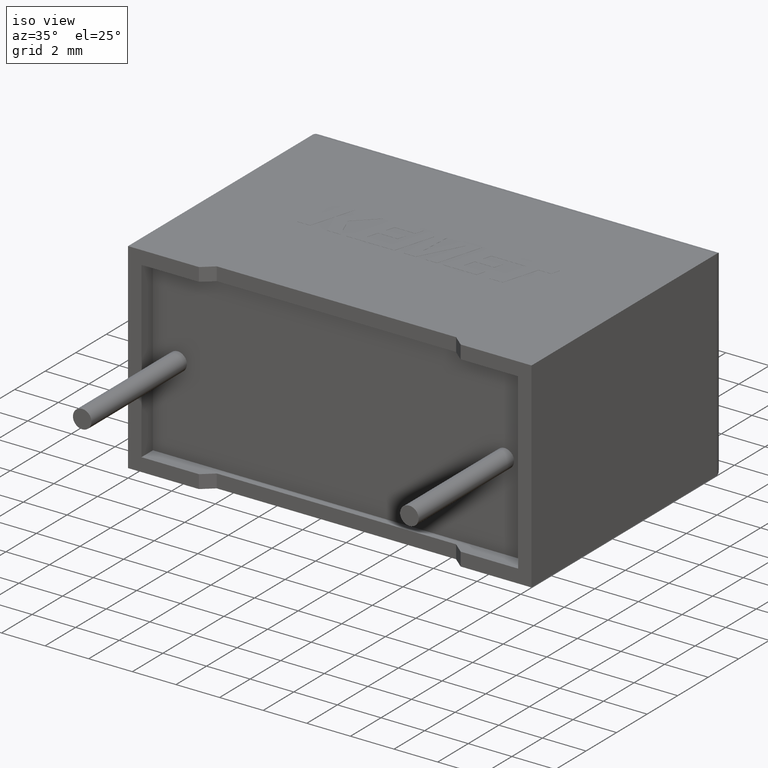
[diagram: clean part render]
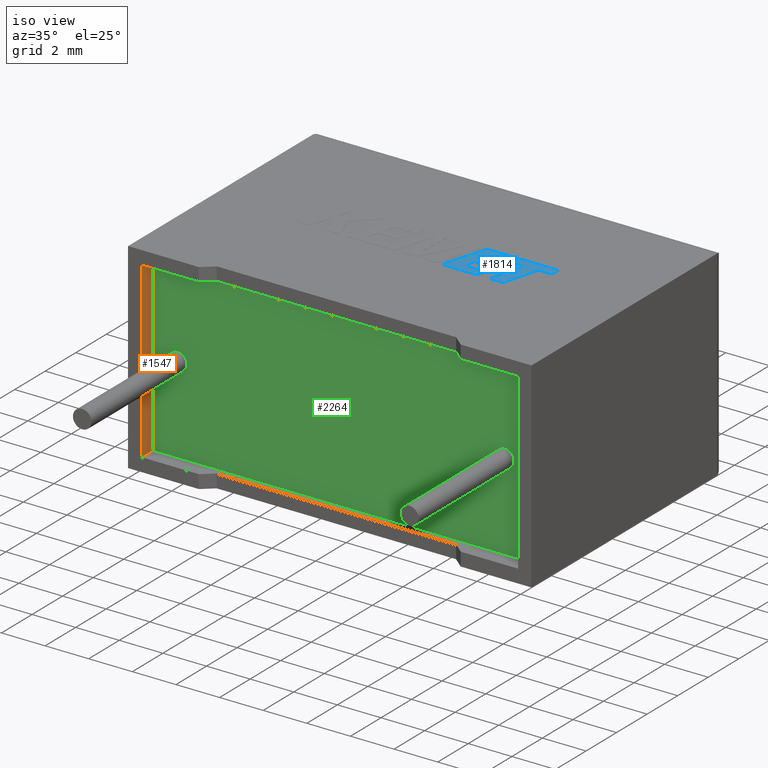
[diagram: same view with three faces highlighted in distinct colors, each labeled with its STEP entity id]
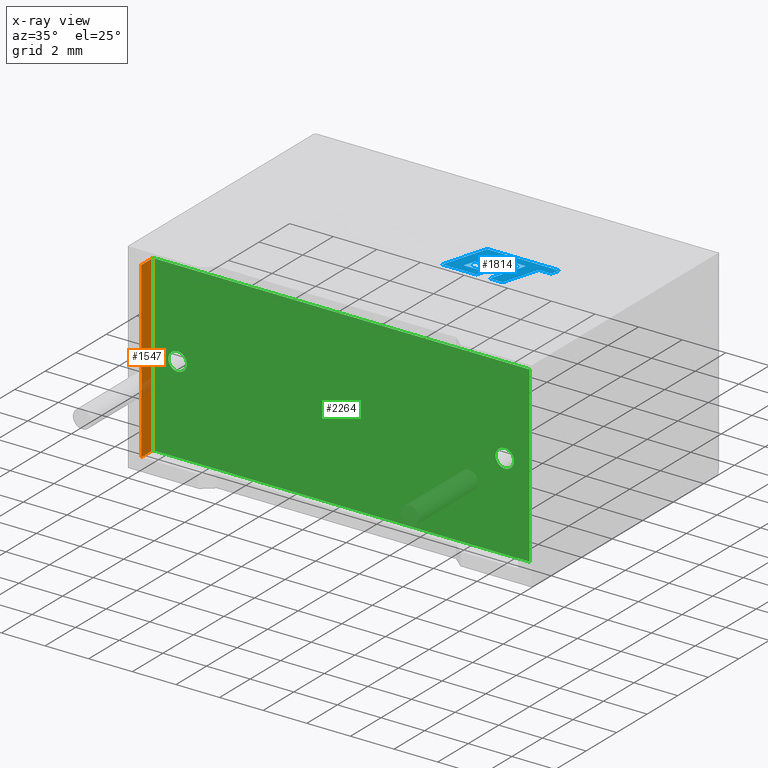
[diagram: x-ray of the same camera — body ghosted, the three highlighted faces saturated]
A machine part, iso view with three faces highlighted in distinct colors.
The next image is the same camera in x-ray (body ghosted, the three faces saturated) — at least one of them is partly hidden behind the body in this view.
Their STEP definitions:

[orange] entity #1547 — the highlighted planar face has unit normal (-1, 0, -0).
#20 = FACE_OUTER_BOUND ( 'NONE', #1400, .T. ) ;
#93 = DIRECTION ( 'NONE',  ( -0.000000000000000000, -1.000000000000000000, -0.000000000000000000 ) ) ;
#151 = VERTEX_POINT ( 'NONE', #849 ) ;
#165 = VECTOR ( 'NONE', #918, 1000.000000000000000 ) ;
#262 = DIRECTION ( 'NONE',  ( -2.721846415985234205E-17, 0.000000000000000000, 1.000000000000000000 ) ) ;
#318 = ORIENTED_EDGE ( 'NONE', *, *, #2822, .T. ) ;
#335 = CARTESIAN_POINT ( 'NONE',  ( 0.6166666050000000343, 0.7500000000000000000, 0.6166666050000000343 ) ) ;
#398 = EDGE_CURVE ( 'NONE', #2894, #1978, #2197, .T. ) ;
#555 = VECTOR ( 'NONE', #2869, 1000.000000000000000 ) ;
#579 = LINE ( 'NONE', #2267, #2067 ) ;
#647 = EDGE_CURVE ( 'NONE', #2625, #2894, #579, .T. ) ;
#849 = CARTESIAN_POINT ( 'NONE',  ( 0.6166666049999998123, 0.000000000000000000, 8.583333394999998589 ) ) ;
#918 = DIRECTION ( 'NONE',  ( -0.000000000000000000, -1.000000000000000000, -0.000000000000000000 ) ) ;
#1188 = ORIENTED_EDGE ( 'NONE', *, *, #3036, .T. ) ;
#1201 = LINE ( 'NONE', #2652, #555 ) ;
#1216 = VECTOR ( 'NONE', #93, 1000.000000000000000 ) ;
#1290 = CARTESIAN_POINT ( 'NONE',  ( 0.6166666050000000343, 0.7500000000000000000, 0.6166666050000000343 ) ) ;
#1400 = EDGE_LOOP ( 'NONE', ( #318, #2171, #1674, #1188 ) ) ;
#1467 = AXIS2_PLACEMENT_3D ( 'NONE', #2599, #2359, #262 ) ;
#1547 = ADVANCED_FACE ( 'NONE', ( #20 ), #2107, .F. ) ;
#1674 = ORIENTED_EDGE ( 'NONE', *, *, #647, .F. ) ;
#1978 = VERTEX_POINT ( 'NONE', #3008 ) ;
#1999 = DIRECTION ( 'NONE',  ( 2.721846415985234513E-17, 0.000000000000000000, -1.000000000000000000 ) ) ;
#2067 = VECTOR ( 'NONE', #1999, 1000.000000000000000 ) ;
#2107 = PLANE ( 'NONE',  #1467 ) ;
#2113 = CARTESIAN_POINT ( 'NONE',  ( 0.6166666049999998123, 0.7500000000000000000, 8.583333394999998589 ) ) ;
#2171 = ORIENTED_EDGE ( 'NONE', *, *, #398, .F. ) ;
#2197 = LINE ( 'NONE', #335, #1216 ) ;
#2267 = CARTESIAN_POINT ( 'NONE',  ( 0.6166666049999998123, 0.7500000000000000000, 8.583333394999998589 ) ) ;
#2359 = DIRECTION ( 'NONE',  ( -1.000000000000000000, 0.000000000000000000, -2.721846415985234205E-17 ) ) ;
#2599 = CARTESIAN_POINT ( 'NONE',  ( 0.6166666049999998123, 0.7500000000000000000, 8.583333394999998589 ) ) ;
#2625 = VERTEX_POINT ( 'NONE', #2793 ) ;
#2652 = CARTESIAN_POINT ( 'NONE',  ( 0.6166666049999998123, 0.000000000000000000, 8.583333394999998589 ) ) ;
#2793 = CARTESIAN_POINT ( 'NONE',  ( 0.6166666049999998123, 0.7500000000000000000, 8.583333394999998589 ) ) ;
#2822 = EDGE_CURVE ( 'NONE', #151, #1978, #1201, .T. ) ;
#2869 = DIRECTION ( 'NONE',  ( 2.721846415985234513E-17, 0.000000000000000000, -1.000000000000000000 ) ) ;
#2894 = VERTEX_POINT ( 'NONE', #1290 ) ;
#3008 = CARTESIAN_POINT ( 'NONE',  ( 0.6166666050000000343, 0.000000000000000000, 0.6166666049999998123 ) ) ;
#3036 = EDGE_CURVE ( 'NONE', #2625, #151, #3054, .T. ) ;
#3054 = LINE ( 'NONE', #2113, #165 ) ;

[blue] entity #1814 — the highlighted planar face has unit normal (0, 0, 1).
#27 = DIRECTION ( 'NONE',  ( -1.000000000000000000, 0.000000000000000000, 0.000000000000000000 ) ) ;
#40 = VERTEX_POINT ( 'NONE', #2036 ) ;
#68 = DIRECTION ( 'NONE',  ( -1.000000000000000000, 0.000000000000000000, 0.000000000000000000 ) ) ;
#83 = CARTESIAN_POINT ( 'NONE',  ( 14.42659749408573688, 7.093795690271837984, 9.205000000000000071 ) ) ;
#89 = EDGE_CURVE ( 'NONE', #988, #1093, #604, .T. ) ;
#111 = DIRECTION ( 'NONE',  ( 1.000000000000000000, 0.000000000000000000, 0.000000000000000000 ) ) ;
#127 = CARTESIAN_POINT ( 'NONE',  ( 14.42659749408573688, 7.093795690271837984, 9.205000000000000071 ) ) ;
#138 = DIRECTION ( 'NONE',  ( 1.000000000000000000, 1.002616505299178603E-15, 0.000000000000000000 ) ) ;
#140 = CARTESIAN_POINT ( 'NONE',  ( 12.35727195110518650, 6.331020239463342136, 9.205000000000000071 ) ) ;
#154 = VERTEX_POINT ( 'NONE', #1610 ) ;
#187 = EDGE_CURVE ( 'NONE', #1475, #40, #2312, .T. ) ;
#200 = CARTESIAN_POINT ( 'NONE',  ( 13.85926046337341688, 7.093840730291446128, 9.205000000000000071 ) ) ;
#208 = VECTOR ( 'NONE', #440, 1000.000000000000114 ) ;
#227 = CARTESIAN_POINT ( 'NONE',  ( 12.46668824934210562, 6.714021387523859019, 9.205000000000000071 ) ) ;
#239 = VECTOR ( 'NONE', #1269, 1000.000000000000114 ) ;
#240 = VERTEX_POINT ( 'NONE', #200 ) ;
#246 = VECTOR ( 'NONE', #2682, 1000.000000000000000 ) ;
#280 = DIRECTION ( 'NONE',  ( 0.2793947940814923148, 0.9601763114346033579, 0.000000000000000000 ) ) ;
#315 = EDGE_CURVE ( 'NONE', #2184, #1897, #2847, .T. ) ;
#330 = CARTESIAN_POINT ( 'NONE',  ( 13.85926046337341688, 7.093840730291446128, 9.205000000000000071 ) ) ;
#356 = CARTESIAN_POINT ( 'NONE',  ( 13.26912064084475595, 7.093840730296598451, 9.205000000000000071 ) ) ;
#368 = EDGE_CURVE ( 'NONE', #1200, #2184, #829, .T. ) ;
#371 = ORIENTED_EDGE ( 'NONE', *, *, #2244, .T. ) ;
#403 = EDGE_CURVE ( 'NONE', #1027, #2395, #2925, .T. ) ;
#410 = LINE ( 'NONE', #1340, #1688 ) ;
#416 = DIRECTION ( 'NONE',  ( -0.2763173343569615414, -0.9610664548999008350, 0.000000000000000000 ) ) ;
#439 = VECTOR ( 'NONE', #68, 1000.000000000000000 ) ;
#440 = DIRECTION ( 'NONE',  ( 0.2746918797667269874, 0.9615323037684286867, 0.000000000000000000 ) ) ;
#452 = ORIENTED_EDGE ( 'NONE', *, *, #2002, .T. ) ;
#468 = DIRECTION ( 'NONE',  ( 0.000000000000000000, 0.000000000000000000, 1.000000000000000000 ) ) ;
#488 = CARTESIAN_POINT ( 'NONE',  ( 13.37866295117204096, 5.421779999999936095, 9.205000000000000071 ) ) ;
#497 = LINE ( 'NONE', #2363, #2032 ) ;
#538 = VECTOR ( 'NONE', #111, 1000.000000000000000 ) ;
#595 = CARTESIAN_POINT ( 'NONE',  ( 11.21512356631426321, 7.493935418444622520, 9.205000000000000071 ) ) ;
#604 = LINE ( 'NONE', #83, #239 ) ;
#650 = VECTOR ( 'NONE', #416, 1000.000000000000000 ) ;
#654 = EDGE_CURVE ( 'NONE', #154, #1437, #1060, .T. ) ;
#668 = CARTESIAN_POINT ( 'NONE',  ( 10.61909897749128184, 5.421779999999935207, 9.205000000000000071 ) ) ;
#669 = EDGE_CURVE ( 'NONE', #2395, #240, #1088, .T. ) ;
#738 = CARTESIAN_POINT ( 'NONE',  ( 12.29655932587097666, 5.816084432582272257, 9.205000000000000071 ) ) ;
#829 = LINE ( 'NONE', #1756, #439 ) ;
#834 = CARTESIAN_POINT ( 'NONE',  ( 11.46814324129412022, 6.331020239463341248, 9.205000000000000071 ) ) ;
#871 = CARTESIAN_POINT ( 'NONE',  ( 11.32113753644195775, 5.816084432582272257, 9.205000000000000071 ) ) ;
#881 = VECTOR ( 'NONE', #2741, 1000.000000000000000 ) ;
#887 = ORIENTED_EDGE ( 'NONE', *, *, #669, .T. ) ;
#903 = CARTESIAN_POINT ( 'NONE',  ( 14.54159073302496274, 7.493935418444622520, 9.205000000000000071 ) ) ;
#932 = LINE ( 'NONE', #2158, #1532 ) ;
#988 = VERTEX_POINT ( 'NONE', #127 ) ;
#1002 = ORIENTED_EDGE ( 'NONE', *, *, #1988, .T. ) ;
#1027 = VERTEX_POINT ( 'NONE', #1541 ) ;
#1030 = EDGE_CURVE ( 'NONE', #40, #1907, #1299, .T. ) ;
#1059 = LINE ( 'NONE', #330, #2538 ) ;
#1060 = LINE ( 'NONE', #595, #881 ) ;
#1069 = ORIENTED_EDGE ( 'NONE', *, *, #2462, .T. ) ;
#1082 = ORIENTED_EDGE ( 'NONE', *, *, #2286, .T. ) ;
#1088 = LINE ( 'NONE', #2008, #246 ) ;
#1093 = VERTEX_POINT ( 'NONE', #903 ) ;
#1154 = EDGE_CURVE ( 'NONE', #1297, #1027, #1816, .T. ) ;
#1155 = DIRECTION ( 'NONE',  ( -1.000000000000000000, 0.000000000000000000, 0.000000000000000000 ) ) ;
#1176 = VECTOR ( 'NONE', #27, 1000.000000000000000 ) ;
#1183 = VERTEX_POINT ( 'NONE', #738 ) ;
#1200 = VERTEX_POINT ( 'NONE', #227 ) ;
#1269 = DIRECTION ( 'NONE',  ( 0.2762033010290175783, 0.9610992334304890861, 0.000000000000000000 ) ) ;
#1297 = VERTEX_POINT ( 'NONE', #356 ) ;
#1299 = LINE ( 'NONE', #834, #2263 ) ;
#1315 = VECTOR ( 'NONE', #2505, 1000.000000000000114 ) ;
#1340 = CARTESIAN_POINT ( 'NONE',  ( 11.68958428804255867, 7.099441967723016056, 9.205000000000000071 ) ) ;
#1357 = CARTESIAN_POINT ( 'NONE',  ( 11.68958428804255867, 7.099441967723016056, 9.205000000000000071 ) ) ;
#1390 = DIRECTION ( 'NONE',  ( 1.000000000000000000, 0.000000000000000000, 0.000000000000000000 ) ) ;
#1396 = CARTESIAN_POINT ( 'NONE',  ( 11.57743352744045318, 6.714021387523859019, 9.205000000000000071 ) ) ;
#1399 = LINE ( 'NONE', #2131, #1176 ) ;
#1437 = VERTEX_POINT ( 'NONE', #2539 ) ;
#1475 = VERTEX_POINT ( 'NONE', #2061 ) ;
#1483 = EDGE_CURVE ( 'NONE', #1437, #2159, #2783, .T. ) ;
#1527 = DIRECTION ( 'NONE',  ( 0.9999999968487351953, -7.938847109813992875E-05, 0.000000000000000000 ) ) ;
#1532 = VECTOR ( 'NONE', #1889, 1000.000000000000227 ) ;
#1541 = CARTESIAN_POINT ( 'NONE',  ( 12.78838451534274867, 5.421779999999936095, 9.205000000000000071 ) ) ;
#1610 = CARTESIAN_POINT ( 'NONE',  ( 11.21512356631426321, 7.493935418444622520, 9.205000000000000071 ) ) ;
#1637 = CARTESIAN_POINT ( 'NONE',  ( -0.2249145928931925442, -1.285113458202319814, 9.204999999999996518 ) ) ;
#1688 = VECTOR ( 'NONE', #2293, 999.9999999999998863 ) ;
#1727 = VECTOR ( 'NONE', #2555, 1000.000000000000000 ) ;
#1756 = CARTESIAN_POINT ( 'NONE',  ( 12.46668824934210562, 6.714021387523859019, 9.205000000000000071 ) ) ;
#1769 = ORIENTED_EDGE ( 'NONE', *, *, #89, .T. ) ;
#1814 = ADVANCED_FACE ( 'NONE', ( #1925 ), #2867, .T. ) ;
#1816 = LINE ( 'NONE', #2766, #650 ) ;
#1888 = VECTOR ( 'NONE', #2938, 1000.000000000000114 ) ;
#1889 = DIRECTION ( 'NONE',  ( 0.9999891854650020395, -0.004650693823678666954, 0.000000000000000000 ) ) ;
#1897 = VERTEX_POINT ( 'NONE', #1357 ) ;
#1907 = VERTEX_POINT ( 'NONE', #140 ) ;
#1910 = ORIENTED_EDGE ( 'NONE', *, *, #1030, .T. ) ;
#1925 = FACE_OUTER_BOUND ( 'NONE', #2179, .T. ) ;
#1929 = ORIENTED_EDGE ( 'NONE', *, *, #1154, .T. ) ;
#1988 = EDGE_CURVE ( 'NONE', #2747, #1297, #932, .T. ) ;
#1997 = ORIENTED_EDGE ( 'NONE', *, *, #187, .T. ) ;
#2002 = EDGE_CURVE ( 'NONE', #1183, #1475, #497, .T. ) ;
#2008 = CARTESIAN_POINT ( 'NONE',  ( 13.37866295117204096, 5.421779999999936095, 9.205000000000000071 ) ) ;
#2023 = ORIENTED_EDGE ( 'NONE', *, *, #2057, .T. ) ;
#2032 = VECTOR ( 'NONE', #1155, 1000.000000000000000 ) ;
#2036 = CARTESIAN_POINT ( 'NONE',  ( 11.46814324129412022, 6.331020239463341248, 9.205000000000000071 ) ) ;
#2057 = EDGE_CURVE ( 'NONE', #1093, #154, #1399, .T. ) ;
#2061 = CARTESIAN_POINT ( 'NONE',  ( 11.32113753644195775, 5.816084432582272257, 9.205000000000000071 ) ) ;
#2077 = CARTESIAN_POINT ( 'NONE',  ( 11.57743352744045318, 6.714021387523859019, 9.205000000000000071 ) ) ;
#2101 = ORIENTED_EDGE ( 'NONE', *, *, #403, .T. ) ;
#2131 = CARTESIAN_POINT ( 'NONE',  ( 14.54159073302496274, 7.493935418444622520, 9.205000000000000071 ) ) ;
#2157 = ORIENTED_EDGE ( 'NONE', *, *, #1483, .T. ) ;
#2158 = CARTESIAN_POINT ( 'NONE',  ( 12.63916099769774704, 7.096770511402368697, 9.205000000000000071 ) ) ;
#2159 = VERTEX_POINT ( 'NONE', #2896 ) ;
#2165 = ORIENTED_EDGE ( 'NONE', *, *, #654, .T. ) ;
#2179 = EDGE_LOOP ( 'NONE', ( #1082, #1002, #1929, #2101, #887, #2452, #1769, #2023, #2165, #2157, #1069, #452, #1997, #1910, #371, #2910, #2239 ) ) ;
#2184 = VERTEX_POINT ( 'NONE', #2077 ) ;
#2209 = LINE ( 'NONE', #2712, #1888 ) ;
#2239 = ORIENTED_EDGE ( 'NONE', *, *, #315, .T. ) ;
#2244 = EDGE_CURVE ( 'NONE', #1907, #1200, #3032, .T. ) ;
#2263 = VECTOR ( 'NONE', #138, 1000.000000000000000 ) ;
#2286 = EDGE_CURVE ( 'NONE', #1897, #2747, #410, .T. ) ;
#2293 = DIRECTION ( 'NONE',  ( 0.9999960426590096541, -0.002813301676021314705, 0.000000000000000000 ) ) ;
#2312 = LINE ( 'NONE', #871, #1315 ) ;
#2363 = CARTESIAN_POINT ( 'NONE',  ( 12.29655932587097666, 5.816084432582272257, 9.205000000000000071 ) ) ;
#2395 = VERTEX_POINT ( 'NONE', #488 ) ;
#2424 = CARTESIAN_POINT ( 'NONE',  ( 12.78838451534274867, 5.421779999999936095, 9.205000000000000071 ) ) ;
#2427 = AXIS2_PLACEMENT_3D ( 'NONE', #1637, #468, #1390 ) ;
#2452 = ORIENTED_EDGE ( 'NONE', *, *, #2895, .T. ) ;
#2462 = EDGE_CURVE ( 'NONE', #2159, #1183, #2209, .T. ) ;
#2505 = DIRECTION ( 'NONE',  ( 0.2745159998572630489, 0.9615825319869153454, 0.000000000000000000 ) ) ;
#2538 = VECTOR ( 'NONE', #1527, 1000.000000000000114 ) ;
#2539 = CARTESIAN_POINT ( 'NONE',  ( 10.61909897749128184, 5.421779999999935207, 9.205000000000000071 ) ) ;
#2555 = DIRECTION ( 'NONE',  ( 1.000000000000000000, 5.694109626320595965E-16, 0.000000000000000000 ) ) ;
#2682 = DIRECTION ( 'NONE',  ( 0.2762437428917223770, 0.9610876102172850599, 0.000000000000000000 ) ) ;
#2712 = CARTESIAN_POINT ( 'NONE',  ( 12.18467319065931598, 5.421779999999936095, 9.205000000000000071 ) ) ;
#2741 = DIRECTION ( 'NONE',  ( -0.2764273280489764617, -0.9610348236706636182, 0.000000000000000000 ) ) ;
#2747 = VERTEX_POINT ( 'NONE', #2887 ) ;
#2766 = CARTESIAN_POINT ( 'NONE',  ( 13.26912064084475595, 7.093840730296598451, 9.205000000000000071 ) ) ;
#2783 = LINE ( 'NONE', #668, #1727 ) ;
#2847 = LINE ( 'NONE', #1396, #2916 ) ;
#2867 = PLANE ( 'NONE',  #2427 ) ;
#2887 = CARTESIAN_POINT ( 'NONE',  ( 12.63916099769774704, 7.096770511402368697, 9.205000000000000071 ) ) ;
#2895 = EDGE_CURVE ( 'NONE', #240, #988, #1059, .T. ) ;
#2896 = CARTESIAN_POINT ( 'NONE',  ( 12.18467319065931598, 5.421779999999936095, 9.205000000000000071 ) ) ;
#2910 = ORIENTED_EDGE ( 'NONE', *, *, #368, .T. ) ;
#2916 = VECTOR ( 'NONE', #280, 1000.000000000000114 ) ;
#2925 = LINE ( 'NONE', #2424, #538 ) ;
#2938 = DIRECTION ( 'NONE',  ( 0.2729786930694848013, 0.9620200793798827643, 0.000000000000000000 ) ) ;
#3032 = LINE ( 'NONE', #3044, #208 ) ;
#3044 = CARTESIAN_POINT ( 'NONE',  ( 12.35727195110518650, 6.331020239463342136, 9.205000000000000071 ) ) ;

[green] entity #2264 — the highlighted planar face has unit normal (0, -1, 0).
#51 = DIRECTION ( 'NONE',  ( 0.000000000000000000, 0.000000000000000000, -1.000000000000000000 ) ) ;
#174 = CARTESIAN_POINT ( 'NONE',  ( 16.75000000000000000, 0.7499999999999997780, 5.025000000000000355 ) ) ;
#213 = AXIS2_PLACEMENT_3D ( 'NONE', #301, #2855, #1451 ) ;
#248 = CARTESIAN_POINT ( 'NONE',  ( 1.749999999999999778, 0.7500000000000000000, 5.025000000000000355 ) ) ;
#282 = CARTESIAN_POINT ( 'NONE',  ( 17.88333339499999752, 0.7500000000000000000, 8.583333395000000365 ) ) ;
#301 = CARTESIAN_POINT ( 'NONE',  ( 16.75000000000000000, 0.7499999999999997780, 4.599999999999999645 ) ) ;
#312 = CIRCLE ( 'NONE', #213, 0.4250000000000000444 ) ;
#350 = CARTESIAN_POINT ( 'NONE',  ( 0.6166666050000000343, 0.7500000000000000000, 0.6166666050000000343 ) ) ;
#380 = EDGE_CURVE ( 'NONE', #1917, #2005, #2164, .T. ) ;
#480 = DIRECTION ( 'NONE',  ( -1.000000000000000000, 0.000000000000000000, -1.004666098601887175E-16 ) ) ;
#482 = CARTESIAN_POINT ( 'NONE',  ( 16.75000000000000000, 0.7499999999999997780, 4.174999999999999822 ) ) ;
#521 = EDGE_LOOP ( 'NONE', ( #2991, #2646 ) ) ;
#557 = EDGE_LOOP ( 'NONE', ( #1419, #2548, #1223, #1734 ) ) ;
#579 = LINE ( 'NONE', #2267, #2067 ) ;
#581 = LINE ( 'NONE', #350, #2833 ) ;
#600 = DIRECTION ( 'NONE',  ( 0.000000000000000000, 0.000000000000000000, -1.000000000000000000 ) ) ;
#622 = VERTEX_POINT ( 'NONE', #1164 ) ;
#647 = EDGE_CURVE ( 'NONE', #2625, #2894, #579, .T. ) ;
#723 = FACE_BOUND ( 'NONE', #1708, .T. ) ;
#836 = AXIS2_PLACEMENT_3D ( 'NONE', #1706, #2700, #1282 ) ;
#882 = LINE ( 'NONE', #2091, #2326 ) ;
#939 = VERTEX_POINT ( 'NONE', #482 ) ;
#1123 = AXIS2_PLACEMENT_3D ( 'NONE', #1205, #2614, #51 ) ;
#1164 = CARTESIAN_POINT ( 'NONE',  ( 17.88333339499999752, 0.7500000000000000000, 0.6166666050000000343 ) ) ;
#1195 = VERTEX_POINT ( 'NONE', #2381 ) ;
#1205 = CARTESIAN_POINT ( 'NONE',  ( 1.749999999999999778, 0.7500000000000000000, 4.599999999999999645 ) ) ;
#1214 = EDGE_CURVE ( 'NONE', #2005, #1917, #2421, .T. ) ;
#1223 = ORIENTED_EDGE ( 'NONE', *, *, #2200, .T. ) ;
#1282 = DIRECTION ( 'NONE',  ( 0.000000000000000000, 0.000000000000000000, -1.000000000000000000 ) ) ;
#1290 = CARTESIAN_POINT ( 'NONE',  ( 0.6166666050000000343, 0.7500000000000000000, 0.6166666050000000343 ) ) ;
#1329 = EDGE_CURVE ( 'NONE', #2946, #939, #2974, .T. ) ;
#1367 = DIRECTION ( 'NONE',  ( 0.000000000000000000, 0.000000000000000000, 1.000000000000000000 ) ) ;
#1393 = FACE_OUTER_BOUND ( 'NONE', #557, .T. ) ;
#1419 = ORIENTED_EDGE ( 'NONE', *, *, #647, .T. ) ;
#1451 = DIRECTION ( 'NONE',  ( 0.000000000000000000, 0.000000000000000000, -1.000000000000000000 ) ) ;
#1622 = PLANE ( 'NONE',  #2130 ) ;
#1706 = CARTESIAN_POINT ( 'NONE',  ( 1.749999999999999778, 0.7500000000000000000, 4.599999999999999645 ) ) ;
#1708 = EDGE_LOOP ( 'NONE', ( #2758, #2794 ) ) ;
#1734 = ORIENTED_EDGE ( 'NONE', *, *, #2054, .T. ) ;
#1834 = DIRECTION ( 'NONE',  ( 0.000000000000000000, -0.000000000000000000, -1.000000000000000000 ) ) ;
#1863 = DIRECTION ( 'NONE',  ( 0.000000000000000000, -1.000000000000000000, 0.000000000000000000 ) ) ;
#1885 = VECTOR ( 'NONE', #480, 1000.000000000000000 ) ;
#1917 = VERTEX_POINT ( 'NONE', #2314 ) ;
#1979 = AXIS2_PLACEMENT_3D ( 'NONE', #2926, #2658, #600 ) ;
#1999 = DIRECTION ( 'NONE',  ( 2.721846415985234513E-17, 0.000000000000000000, -1.000000000000000000 ) ) ;
#2005 = VERTEX_POINT ( 'NONE', #248 ) ;
#2010 = DIRECTION ( 'NONE',  ( 1.000000000000000000, 0.000000000000000000, 0.000000000000000000 ) ) ;
#2054 = EDGE_CURVE ( 'NONE', #1195, #2625, #2399, .T. ) ;
#2067 = VECTOR ( 'NONE', #1999, 1000.000000000000000 ) ;
#2091 = CARTESIAN_POINT ( 'NONE',  ( 17.88333339499999752, 0.7500000000000000000, 0.6166666050000000343 ) ) ;
#2130 = AXIS2_PLACEMENT_3D ( 'NONE', #2341, #1863, #1834 ) ;
#2164 = CIRCLE ( 'NONE', #836, 0.4250000000000000444 ) ;
#2200 = EDGE_CURVE ( 'NONE', #622, #1195, #882, .T. ) ;
#2264 = ADVANCED_FACE ( 'NONE', ( #2307, #1393, #723 ), #1622, .T. ) ;
#2267 = CARTESIAN_POINT ( 'NONE',  ( 0.6166666049999998123, 0.7500000000000000000, 8.583333394999998589 ) ) ;
#2307 = FACE_BOUND ( 'NONE', #521, .T. ) ;
#2314 = CARTESIAN_POINT ( 'NONE',  ( 1.749999999999999778, 0.7500000000000000000, 4.174999999999999822 ) ) ;
#2326 = VECTOR ( 'NONE', #1367, 1000.000000000000000 ) ;
#2341 = CARTESIAN_POINT ( 'NONE',  ( 0.000000000000000000, 0.7500000000000000000, 0.000000000000000000 ) ) ;
#2381 = CARTESIAN_POINT ( 'NONE',  ( 17.88333339499999752, 0.7500000000000000000, 8.583333395000000365 ) ) ;
#2399 = LINE ( 'NONE', #282, #1885 ) ;
#2421 = CIRCLE ( 'NONE', #1123, 0.4250000000000000444 ) ;
#2435 = EDGE_CURVE ( 'NONE', #2894, #622, #581, .T. ) ;
#2548 = ORIENTED_EDGE ( 'NONE', *, *, #2435, .T. ) ;
#2614 = DIRECTION ( 'NONE',  ( 0.000000000000000000, -1.000000000000000000, 0.000000000000000000 ) ) ;
#2625 = VERTEX_POINT ( 'NONE', #2793 ) ;
#2646 = ORIENTED_EDGE ( 'NONE', *, *, #2667, .F. ) ;
#2658 = DIRECTION ( 'NONE',  ( 0.000000000000000000, -1.000000000000000000, 0.000000000000000000 ) ) ;
#2667 = EDGE_CURVE ( 'NONE', #939, #2946, #312, .T. ) ;
#2700 = DIRECTION ( 'NONE',  ( 0.000000000000000000, -1.000000000000000000, 0.000000000000000000 ) ) ;
#2758 = ORIENTED_EDGE ( 'NONE', *, *, #1214, .F. ) ;
#2793 = CARTESIAN_POINT ( 'NONE',  ( 0.6166666049999998123, 0.7500000000000000000, 8.583333394999998589 ) ) ;
#2794 = ORIENTED_EDGE ( 'NONE', *, *, #380, .F. ) ;
#2833 = VECTOR ( 'NONE', #2010, 1000.000000000000000 ) ;
#2855 = DIRECTION ( 'NONE',  ( 0.000000000000000000, -1.000000000000000000, 0.000000000000000000 ) ) ;
#2894 = VERTEX_POINT ( 'NONE', #1290 ) ;
#2926 = CARTESIAN_POINT ( 'NONE',  ( 16.75000000000000000, 0.7499999999999997780, 4.599999999999999645 ) ) ;
#2946 = VERTEX_POINT ( 'NONE', #174 ) ;
#2974 = CIRCLE ( 'NONE', #1979, 0.4250000000000000444 ) ;
#2991 = ORIENTED_EDGE ( 'NONE', *, *, #1329, .F. ) ;